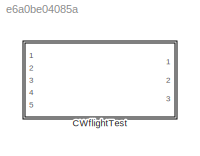
MODEL slx_e6a0be04085a
KIND library
CONFIG AbsTol = auto
CONFIG EnableMultiTasking = off
CONFIG FixedStep = auto
CONFIG MaxStep = auto
CONFIG MinStep = auto
CONFIG RelTol = 1e-3
CONFIG SampleTimeConstraint = Unconstrained
CONFIG Solver = VariableStepAuto
CONFIG SolverName = VariableStepAuto
CONFIG StartTime = 0.0
CONFIG StopTime = 10.0
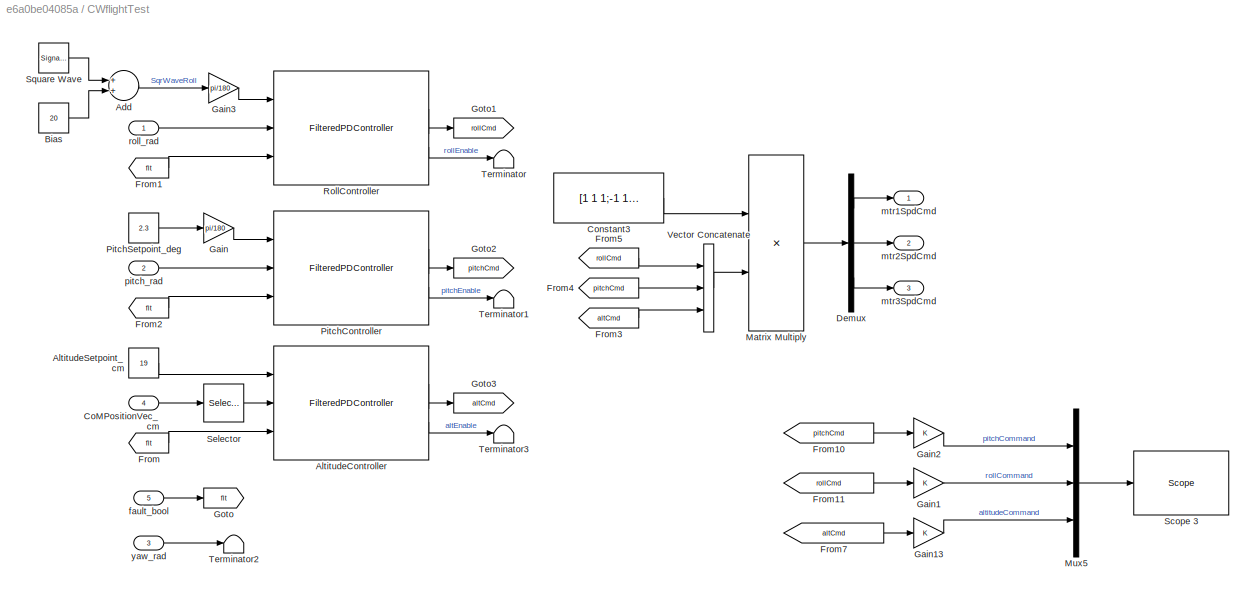
BLOCK [SubSystem] CWflightTest
  Ports = [5, 3]
  RequestExecContextInheritance = off
  VariantControl = VSS_CWflightTest
BLOCK [Sum] CWflightTest/Add
  InputSameDT = off
  OutDataTypeStr = Inherit: Inherit via internal rule
  Ports = [2, 1]
  SaturateOnIntegerOverflow = off
BLOCK [Reference] CWflightTest/AltitudeController  REF=filteredPDController_ul/FilteredPDController
  Ports = [3, 2]
  SourceBlock = filteredPDController_ul/FilteredPDController
BLOCK [Constant] CWflightTest/AltitudeSetpoint_cm
  Value = 19
BLOCK [Constant] CWflightTest/Bias
  Value = 20
BLOCK [Inport] CWflightTest/CoMPositionVec_cm
  IconDisplay = Port number
  Port = 4
BLOCK [Constant] CWflightTest/Constant3
  Value = [1 1 1;-1 1 1;0 -1 1]
BLOCK [Demux] CWflightTest/Demux
  DisplayOption = bar
  Outputs = 3
  Ports = [1, 3]
BLOCK [From] CWflightTest/From
  GotoTag = flt
BLOCK [From] CWflightTest/From1
  GotoTag = flt
BLOCK [From] CWflightTest/From10
  GotoTag = pitchCmd
BLOCK [From] CWflightTest/From11
  GotoTag = rollCmd
BLOCK [From] CWflightTest/From2
  GotoTag = flt
BLOCK [From] CWflightTest/From3
  GotoTag = altCmd
BLOCK [From] CWflightTest/From4
  GotoTag = pitchCmd
BLOCK [From] CWflightTest/From5
  GotoTag = rollCmd
BLOCK [From] CWflightTest/From7
  GotoTag = altCmd
BLOCK [Gain] CWflightTest/Gain
  Gain = pi/180
  OutDataTypeStr = Inherit: Inherit via internal rule
  ParamDataTypeStr = Inherit: Inherit via internal rule
  SaturateOnIntegerOverflow = off
BLOCK [Gain] CWflightTest/Gain1
  OutDataTypeStr = Inherit: Inherit via internal rule
  ParamDataTypeStr = Inherit: Inherit via internal rule
  SaturateOnIntegerOverflow = off
BLOCK [Gain] CWflightTest/Gain13
  OutDataTypeStr = Inherit: Inherit via internal rule
  ParamDataTypeStr = Inherit: Inherit via internal rule
  SaturateOnIntegerOverflow = off
BLOCK [Gain] CWflightTest/Gain2
  OutDataTypeStr = Inherit: Inherit via internal rule
  ParamDataTypeStr = Inherit: Inherit via internal rule
  SaturateOnIntegerOverflow = off
BLOCK [Gain] CWflightTest/Gain3
  Gain = pi/180
  OutDataTypeStr = Inherit: Inherit via internal rule
  ParamDataTypeStr = Inherit: Inherit via internal rule
  SaturateOnIntegerOverflow = off
BLOCK [Goto] CWflightTest/Goto
  GotoTag = flt
BLOCK [Goto] CWflightTest/Goto1
  GotoTag = rollCmd
BLOCK [Goto] CWflightTest/Goto2
  GotoTag = pitchCmd
BLOCK [Goto] CWflightTest/Goto3
  GotoTag = altCmd
BLOCK [Product] CWflightTest/Matrix Multiply
  InputSameDT = off
  Multiplication = Matrix(*)
  OutDataTypeStr = Inherit: Inherit via internal rule
  Ports = [2, 1]
  RndMeth = Floor
  SaturateOnIntegerOverflow = off
BLOCK [Mux] CWflightTest/Mux5
  DisplayOption = bar
  Inputs = 3
  Ports = [3, 1]
BLOCK [Reference] CWflightTest/PitchController  REF=filteredPDController_ul/FilteredPDController
  Ports = [3, 2]
  SourceBlock = filteredPDController_ul/FilteredPDController
BLOCK [Constant] CWflightTest/PitchSetpoint_deg
  Value = 2.3
BLOCK [Reference] CWflightTest/RollController  REF=filteredPDController_ul/FilteredPDController
  Ports = [3, 2]
  SourceBlock = filteredPDController_ul/FilteredPDController
BLOCK [Reference] CWflightTest/Scope 3  REF=slrtlib/Displays and
Logging/Scope 
  Ports = [1]
  SourceBlock = slrtlib/Displays and\nLogging/Scope
  SourceProductBaseCode = XP
  SourceProductName = Simulink Real-Time
  SourceType = xpcscopeblock
BLOCK [Selector] CWflightTest/Selector
  IndexOptions = Index vector (dialog)
  Indices = 3
  InputPortWidth = 3
  OutputSizes = 1
  Ports = [1, 1]
BLOCK [SignalGenerator] CWflightTest/Square Wave 
  Amplitude = 7
  Frequency = 0.1
  Ports = [0, 1]
  WaveForm = square
BLOCK [Terminator] CWflightTest/Terminator
BLOCK [Terminator] CWflightTest/Terminator1
BLOCK [Terminator] CWflightTest/Terminator2
BLOCK [Terminator] CWflightTest/Terminator3
BLOCK [Concatenate] CWflightTest/Vector Concatenate
  NumInputs = 3
  Ports = [3, 1]
BLOCK [Inport] CWflightTest/fault_bool
  IconDisplay = Port number
  OutDataTypeStr = boolean
  Port = 5
BLOCK [Outport] CWflightTest/mtr1SpdCmd
  IconDisplay = Port number
BLOCK [Outport] CWflightTest/mtr2SpdCmd
  IconDisplay = Port number
  Port = 2
BLOCK [Outport] CWflightTest/mtr3SpdCmd
  IconDisplay = Port number
  Port = 3
BLOCK [Inport] CWflightTest/pitch_rad
  IconDisplay = Port number
  Port = 2
BLOCK [Inport] CWflightTest/roll_rad
  IconDisplay = Port number
BLOCK [Inport] CWflightTest/yaw_rad
  IconDisplay = Port number
  Port = 3
LINE CWflightTest/Add:1 -> CWflightTest/Gain3:1
LINE CWflightTest/AltitudeController:1 -> CWflightTest/Goto3:1
LINE CWflightTest/AltitudeController:2 -> CWflightTest/Terminator3:1
LINE CWflightTest/AltitudeSetpoint_cm:1 -> CWflightTest/AltitudeController:1
LINE CWflightTest/Bias:1 -> CWflightTest/Add:2
LINE CWflightTest/CoMPositionVec_cm:1 -> CWflightTest/Selector:1
LINE CWflightTest/Constant3:1 -> CWflightTest/Matrix Multiply:1
LINE CWflightTest/Demux:1 -> CWflightTest/mtr1SpdCmd:1
LINE CWflightTest/Demux:2 -> CWflightTest/mtr2SpdCmd:1
LINE CWflightTest/Demux:3 -> CWflightTest/mtr3SpdCmd:1
LINE CWflightTest/From10:1 -> CWflightTest/Gain2:1
LINE CWflightTest/From11:1 -> CWflightTest/Gain1:1
LINE CWflightTest/From1:1 -> CWflightTest/RollController:3
LINE CWflightTest/From2:1 -> CWflightTest/PitchController:3
LINE CWflightTest/From3:1 -> CWflightTest/Vector Concatenate:3
LINE CWflightTest/From4:1 -> CWflightTest/Vector Concatenate:2
LINE CWflightTest/From5:1 -> CWflightTest/Vector Concatenate:1
LINE CWflightTest/From7:1 -> CWflightTest/Gain13:1
LINE CWflightTest/From:1 -> CWflightTest/AltitudeController:3
LINE CWflightTest/Gain13:1 -> CWflightTest/Mux5:3
LINE CWflightTest/Gain1:1 -> CWflightTest/Mux5:2
LINE CWflightTest/Gain2:1 -> CWflightTest/Mux5:1
LINE CWflightTest/Gain3:1 -> CWflightTest/RollController:1
LINE CWflightTest/Gain:1 -> CWflightTest/PitchController:1
LINE CWflightTest/Matrix Multiply:1 -> CWflightTest/Demux:1
LINE CWflightTest/Mux5:1 -> CWflightTest/Scope 3:1
LINE CWflightTest/PitchController:1 -> CWflightTest/Goto2:1
LINE CWflightTest/PitchController:2 -> CWflightTest/Terminator1:1
LINE CWflightTest/PitchSetpoint_deg:1 -> CWflightTest/Gain:1
LINE CWflightTest/RollController:1 -> CWflightTest/Goto1:1
LINE CWflightTest/RollController:2 -> CWflightTest/Terminator:1
LINE CWflightTest/Selector:1 -> CWflightTest/AltitudeController:2
LINE CWflightTest/Square Wave :1 -> CWflightTest/Add:1
LINE CWflightTest/Vector Concatenate:1 -> CWflightTest/Matrix Multiply:2
LINE CWflightTest/fault_bool:1 -> CWflightTest/Goto:1
LINE CWflightTest/pitch_rad:1 -> CWflightTest/PitchController:2
LINE CWflightTest/roll_rad:1 -> CWflightTest/RollController:2
LINE CWflightTest/yaw_rad:1 -> CWflightTest/Terminator2:1
